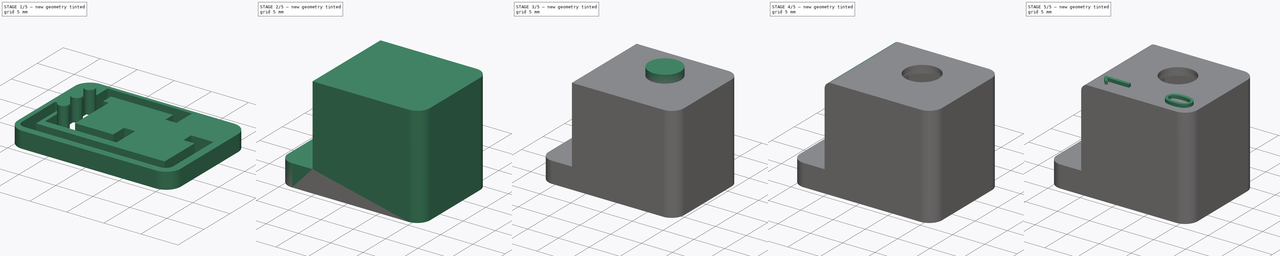
[diagram: build sequence overview — one tinted view per stage of 5, left to right]
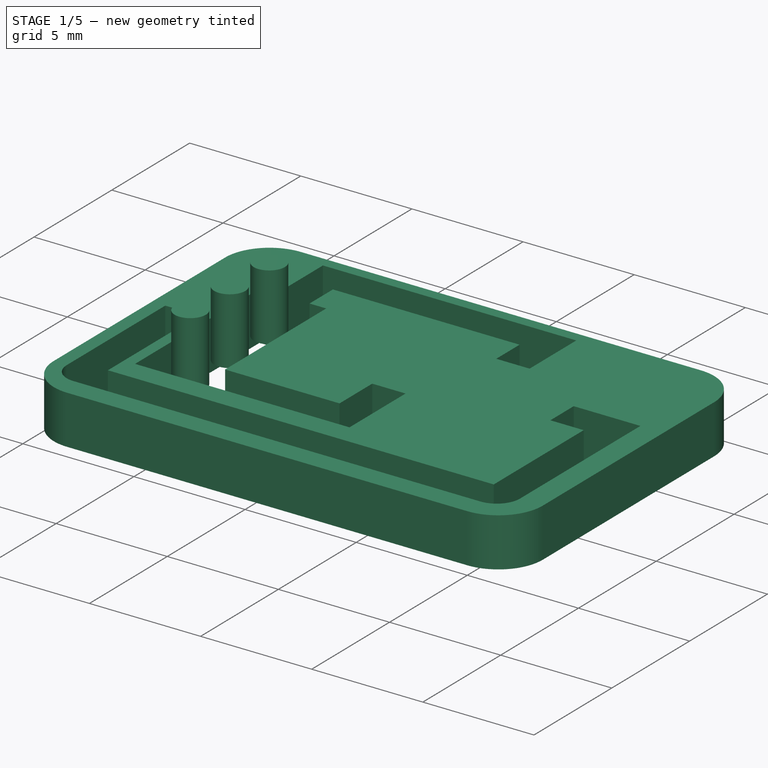
[diagram: stage 1 of 5 — iso view after this stage's code; geometry added in this stage tinted green]
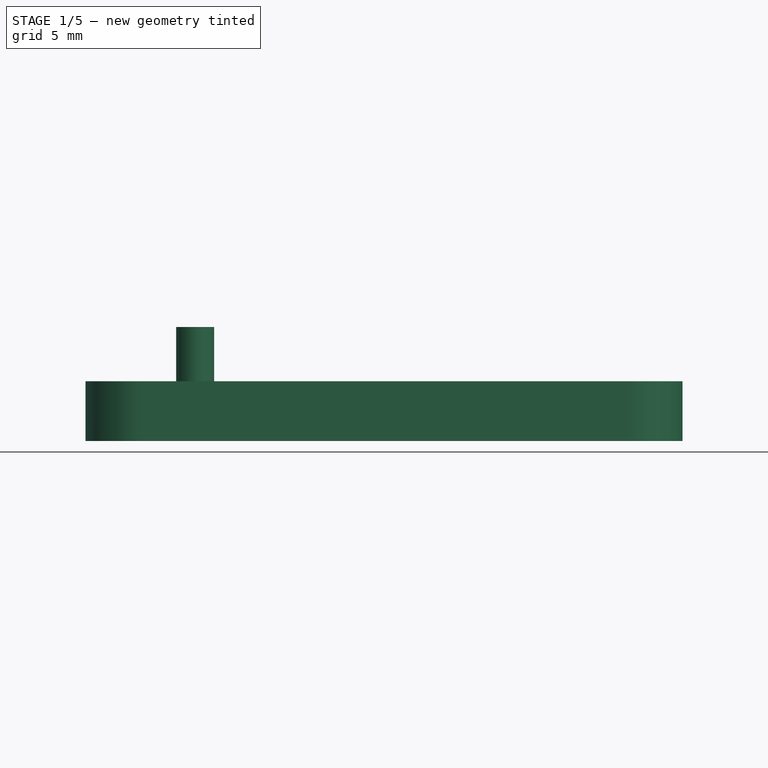
[diagram: stage 1 of 5 — front view after this stage's code; geometry added in this stage tinted green]
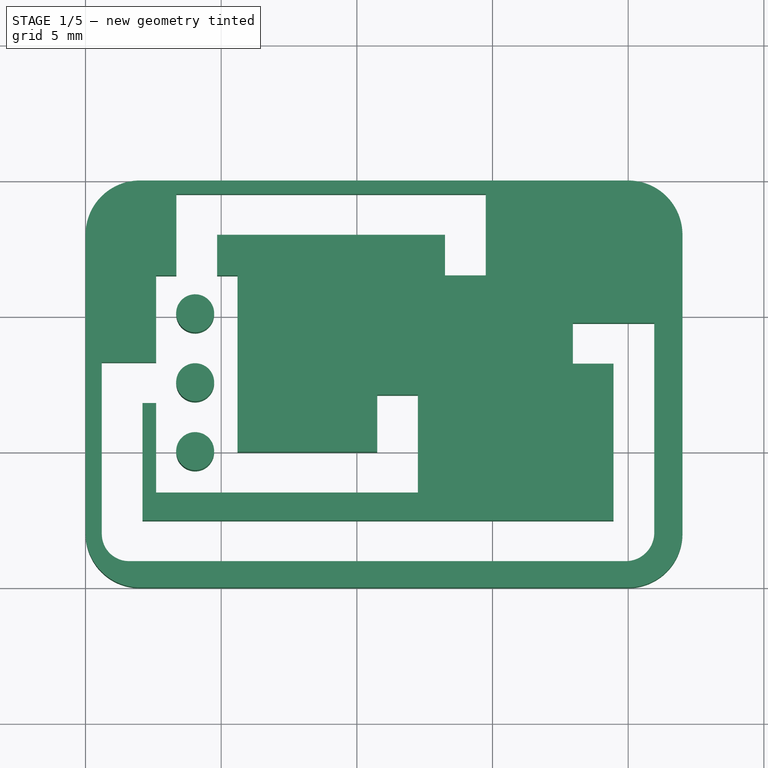
[diagram: stage 1 of 5 — top view after this stage's code; geometry added in this stage tinted green]
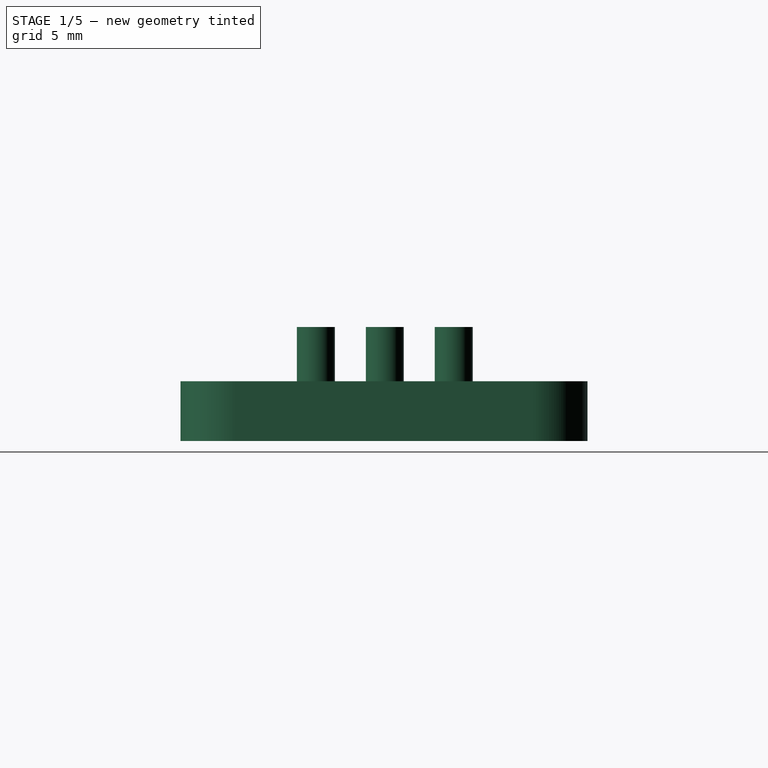
[diagram: stage 1 of 5 — right view after this stage's code; geometry added in this stage tinted green]
FCSTD DOCUMENT  (FreeCAD 0.17R13541 (Git))
Label: pcb_lever_switch
License: CreativeCommons Attribution
LicenseURL: http://creativecommons.org/licenses/by/4.0/
objects: Part::Feature×8, Sketcher::SketchObject×4, App::DocumentObjectGroup×3, Part::Cylinder×3, Part::MultiFuse×3, Part::Part2DObjectPython×3, Part::Extrusion×3, PartDesign::Pad×2, PartDesign::Pocket×2, PartDesign::Body×2, Part::Cut×2, Part::Box×1, Part::FeaturePython×1, Part::Fillet×1
note: 39 computed .brp shape members not serialized (recipe doc carries the construction recipe); baked Part::Feature solids carry a one-line shape summary decoded from their .brp

FEATURE [Sketcher::SketchObject] Sketch003  label="PCB-base-bottom"
  MapMode = 5
  Support = -> [XY_Plane]
  sketch-geometry (12):
    g0: LineSegment [constr] StartX=0 StartY=0 StartZ=0 EndX=22 EndY=0 EndZ=0
    g1: LineSegment [constr] StartX=22 StartY=0 StartZ=0 EndX=22 EndY=15 EndZ=0
    g2: LineSegment [constr] StartX=22 StartY=15 StartZ=0 EndX=0 EndY=15 EndZ=0
    g3: LineSegment [constr] StartX=0 StartY=15 StartZ=0 EndX=0 EndY=0 EndZ=0
    g4: LineSegment StartX=2 StartY=15 StartZ=0 EndX=20 EndY=15 EndZ=0
    g5: LineSegment StartX=22 StartY=13 StartZ=0 EndX=22 EndY=2 EndZ=0
    g6: LineSegment StartX=20 StartY=0 StartZ=0 EndX=2 EndY=0 EndZ=0
    g7: LineSegment StartX=0 StartY=2 StartZ=0 EndX=0 EndY=13 EndZ=0
    g8: ArcOfCircle CenterX=2 CenterY=13 CenterZ=0 NormalX=0 NormalY=0 NormalZ=1 AngleXU=0 Radius=2 StartAngle=1.5708 EndAngle=3.14159
    g9: ArcOfCircle CenterX=2 CenterY=2 CenterZ=0 NormalX=0 NormalY=0 NormalZ=1 AngleXU=0 Radius=2 StartAngle=3.14159 EndAngle=4.71239
    g10: ArcOfCircle CenterX=20 CenterY=2 CenterZ=0 NormalX=0 NormalY=0 NormalZ=1 AngleXU=0 Radius=2 StartAngle=4.71239 EndAngle=6.28319
    g11: ArcOfCircle CenterX=20 CenterY=13 CenterZ=0 NormalX=0 NormalY=0 NormalZ=1 AngleXU=0 Radius=2 StartAngle=0 EndAngle=1.5708
  constraints (31):
    c: Coincident(g0,g1)
    c: Coincident(g1,g2)
    c: Coincident(g2,g3)
    c: Coincident(g3,g0)
    c: Horizontal(g0)
    c: Horizontal(g2)
    c: Vertical(g1)
    c: Vertical(g3)
    c: Coincident(g0,g-1)
    c: DistanceX(g0,g0) = 22
    c: DistanceY(g1,g1) = 15
    c: Horizontal(g4)
    c: Horizontal(g6)
    c: Vertical(g5)
    c: Vertical(g7)
    c: Tangent(g4,g8) = 1.5708
    c: Tangent(g7,g8) = 1.5708
    c: Tangent(g6,g9) = 1.5708
    c: Tangent(g7,g9) = 1.5708
    c: Tangent(g5,g10) = 1.5708
    c: Tangent(g6,g10) = 1.5708
    c: Tangent(g4,g11) = 1.5708
    c: Tangent(g5,g11) = 1.5708
    c: Equal(g8,g11)
    c: Equal(g11,g10)
    c: Equal(g10,g9)
    c: Radius(g8) = 2
    c: PointOnObject(g7,g3)
    c: PointOnObject(g4,g2)
    c: PointOnObject(g6,g0)
    c: PointOnObject(g5,g1)
FEATURE [PartDesign::Pad] Pad  label="Pad  PCB-base-bottom"
  Length = 2.2
  Length2 = 100
  Profile = -> Sketch003
  Reversed = true
  Type = 0
FEATURE [Sketcher::SketchObject] Sketch005  label="pasacables inferior"
  ExternalGeometry = -> [Pad]
  MapMode = 5
  Placement = pos=(0,0,-2.2) rot=(1,0,0;3.14159rad)
  Support = -> [Pad]
  sketch-geometry (37):
    g0: LineSegment StartX=5.6 StartY=-3.5 StartZ=0 EndX=2.6 EndY=-3.5 EndZ=0
    g1: LineSegment StartX=2.6 StartY=-3.5 StartZ=0 EndX=2.6 EndY=-6.8 EndZ=0
    g2: LineSegment StartX=5.6 StartY=-11.5 StartZ=0 EndX=5.6 EndY=-5 EndZ=0
    g3: LineSegment [constr] StartX=5.6 StartY=-3.5 StartZ=0 EndX=5.6 EndY=-11.5 EndZ=0
    g4: LineSegment StartX=13.25 StartY=-13 StartZ=0 EndX=13.25 EndY=-11.5 EndZ=0
    g5: LineSegment StartX=13.25 StartY=-11.5 StartZ=0 EndX=14.75 EndY=-11.5 EndZ=0
    g6: LineSegment StartX=14.75 StartY=-11.5 StartZ=0 EndX=14.75 EndY=-14.5 EndZ=0
    g7: LineSegment StartX=14.75 StartY=-14.5 StartZ=0 EndX=3.35 EndY=-14.5 EndZ=0
    g8: LineSegment [constr] StartX=13.25 StartY=-13 StartZ=0 EndX=13.25 EndY=-14.5 EndZ=0
    g9: LineSegment StartX=2.6 StartY=-11.5 StartZ=0 EndX=3.35 EndY=-11.5 EndZ=0
    g10: LineSegment StartX=3.35 StartY=-11.5 StartZ=0 EndX=3.35 EndY=-14.5 EndZ=0
    g11: LineSegment StartX=5.6 StartY=-11.5 StartZ=0 EndX=4.85 EndY=-11.5 EndZ=0
    g12: LineSegment StartX=4.85 StartY=-11.5 StartZ=0 EndX=4.85 EndY=-13 EndZ=0
    g13: LineSegment StartX=4.85 StartY=-13 StartZ=0 EndX=13.25 EndY=-13 EndZ=0
    g14: LineSegment [constr] StartX=2.6 StartY=-11.5 StartZ=0 EndX=5.6 EndY=-11.5 EndZ=0
    g15: LineSegment StartX=5.6 StartY=-5 StartZ=0 EndX=10.75 EndY=-5 EndZ=0
    g16: LineSegment StartX=10.75 StartY=-5 StartZ=0 EndX=10.75 EndY=-7.1 EndZ=0
    g17: LineSegment StartX=10.75 StartY=-7.1 StartZ=0 EndX=12.25 EndY=-7.1 EndZ=0
    g18: LineSegment StartX=12.25 StartY=-7.1 StartZ=0 EndX=12.25 EndY=-3.5 EndZ=0
    g19: LineSegment StartX=12.25 StartY=-3.5 StartZ=0 EndX=5.6 EndY=-3.5 EndZ=0
    g20: LineSegment StartX=17.96 StartY=-8.25 StartZ=0 EndX=17.96 EndY=-9.75 EndZ=0
    g21: LineSegment StartX=17.96 StartY=-9.75 StartZ=0 EndX=20.96 EndY=-9.75 EndZ=0
    g22: LineSegment StartX=20.96 StartY=-9.75 StartZ=0 EndX=20.96 EndY=-2.02 EndZ=0
    g23: LineSegment StartX=19.91 StartY=-0.97 StartZ=0 EndX=1.6 EndY=-0.97 EndZ=0
    g24: LineSegment StartX=0.6 StartY=-1.97 StartZ=0 EndX=0.6 EndY=-8.3 EndZ=0
    g25: LineSegment StartX=0.6 StartY=-8.3 StartZ=0 EndX=2.6 EndY=-8.3 EndZ=0
    g26: LineSegment StartX=2.6 StartY=-6.8 StartZ=0 EndX=2.1 EndY=-6.8 EndZ=0
    g27: LineSegment StartX=2.1 StartY=-6.8 StartZ=0 EndX=2.1 EndY=-2.47 EndZ=0
    g28: LineSegment StartX=2.1 StartY=-2.47 StartZ=0 EndX=19.46 EndY=-2.47 EndZ=0
    g29: LineSegment StartX=19.46 StartY=-2.47 StartZ=0 EndX=19.46 EndY=-8.25 EndZ=0
    g30: LineSegment StartX=19.46 StartY=-8.25 StartZ=0 EndX=17.96 EndY=-8.25 EndZ=0
    g31: LineSegment StartX=2.6 StartY=-8.3 StartZ=0 EndX=2.6 EndY=-11.5 EndZ=0
    g32: LineSegment [constr] StartX=2.1 StartY=-6.8 StartZ=0 EndX=0.6 EndY=-6.8 EndZ=0
    g33: LineSegment [constr] StartX=19.46 StartY=-2.47 StartZ=0 EndX=19.46 EndY=-0.97 EndZ=0
    g34: LineSegment [constr] StartX=19.46 StartY=-8.25 StartZ=0 EndX=20.96 EndY=-8.25 EndZ=0
    g35: ArcOfCircle CenterX=1.6 CenterY=-1.97 CenterZ=0 NormalX=0 NormalY=0 NormalZ=1 AngleXU=0 Radius=1 StartAngle=1.5708 EndAngle=3.14159
    g36: ArcOfCircle CenterX=19.91 CenterY=-2.02 CenterZ=0 NormalX=0 NormalY=0 NormalZ=1 AngleXU=0 Radius=1.05 StartAngle=0 EndAngle=1.5708
  constraints (109):
    c: Horizontal(g0)
    c: Coincident(g0,g1)
    c: Vertical(g1)
    c: Vertical(g2)
    c: Distance(g31,g-3) = 3.5
    c: DistanceY(g-1,g0) = -3.5
    c: DistanceX(g-2,g0) = 2.6
    c: Vertical(g3)
    c: Coincident(g3,g0)
    c: PointOnObject(g2,g3)
    c: Vertical(g4)
    c: Coincident(g4,g5)
    c: Horizontal(g5)
    c: Coincident(g5,g6)
    c: Vertical(g6)
    c: Coincident(g6,g7)
    c: Horizontal(g7)
    c: DistanceX(g5,g5) = 1.5
    c: Vertical(g8)
    c: PointOnObject(g8,g7)
    c: DistanceY(g8,g8) = 1.5
    c: DistanceX(g7,g7) = 11.4
    c: DistanceY(g6,g6) = 3
    c: Horizontal(g9)
    c: Coincident(g9,g10)
    c: Vertical(g10)
    c: Coincident(g31,g9)
    c: Coincident(g7,g10)
    c: DistanceX(g9,g9) = 0.75
    c: Horizontal(g11)
    c: Coincident(g11,g12)
    c: Vertical(g12)
    c: Coincident(g12,g13)
    c: Horizontal(g13)
    c: Coincident(g2,g3)
    c: Coincident(g2,g11)
    c: DistanceX(g11,g11) = 0.75
    c: Coincident(g4,g8)
    c: Coincident(g4,g13)
    c: DistanceY(g10,g10) = 3
    c: Horizontal(g14)
    c: Coincident(g31,g14)
    c: Coincident(g2,g14)
    c: DistanceX(g0,g0) = 3
    c: Distance(g2,g0) = 1.5
    c: Horizontal(g15)
    c: Coincident(g15,g16)
    c: Vertical(g16)
    c: Coincident(g16,g17)
    c: Horizontal(g17)
    c: Coincident(g17,g18)
    c: Vertical(g18)
    c: Coincident(g18,g19)
    c: Horizontal(g19)
    c: Coincident(g0,g19)
    c: Coincident(g2,g15)
    c: DistanceX(g17,g17) = 1.5
    c: DistanceX(g19,g19) = 6.65
    c: DistanceY(g18,g18) = 3.6
    c: Vertical(g20)
    c: Coincident(g20,g21)
    c: Horizontal(g21)
    c: Coincident(g21,g22)
    c: Vertical(g22)
    c: Horizontal(g23)
    c: Vertical(g24)
    c: Coincident(g24,g25)
    c: Horizontal(g25)
    c: Horizontal(g26)
    c: Coincident(g26,g27)
    c: Vertical(g27)
    c: Coincident(g27,g28)
    c: Horizontal(g28)
    c: Coincident(g28,g29)
    c: Vertical(g29)
    c: Coincident(g29,g30)
    c: Horizontal(g30)
    c: Coincident(g20,g30)
    c: PointOnObject(g1,g26)
    c: PointOnObject(g31,g25)
    c: Tangent(g1,g31)
    c: Coincident(g25,g31)
    c: Coincident(g1,g26)
    c: Distance(g25,g1) = 1.5
    c: DistanceY(g1,g1) = 3.3
    c: Horizontal(g32)
    c: Coincident(g26,g32)
    c: PointOnObject(g32,g24)
    c: DistanceX(g32,g32) = 1.5
    c: DistanceX(g26,g26) = 0.5
    c: Vertical(g33)
    c: Coincident(g28,g33)
    c: PointOnObject(g33,g23)
    c: DistanceY(g33,g33) = 1.5
    c: DistanceY(g20,g20) = 1.5
    c: Horizontal(g34)
    c: Coincident(g29,g34)
    c: PointOnObject(g34,g22)
    c: DistanceX(g34,g34) = 1.5
    c: DistanceX(g30,g30) = 1.5
    c: Tangent(g24,g35) = -1.5708
    c: Tangent(g23,g35) = -1.5708
    c: Tangent(g23,g36) = -1.5708
    c: Tangent(g22,g36) = -1.5708
    c: Radius(g35) = 1
    c: DistanceX(g23,g23) = 18.31
    c: DistanceY(g24,g24) = 6.33
    c: Distance(g23,g33) = 0.45
    c: DistanceY(g22,g22) = 7.73
FEATURE [PartDesign::Pocket] Pocket001001002  label="Hueco inferior pasacables"
  BaseFeature = -> Pad
  Length = 2.5
  Length2 = 100
  Profile = -> Sketch005
  Type = 0
FEATURE [Part::Cylinder] Cylinder002  label="Master hueco conector"
  Angle = 360
  AttacherType = Attacher::AttachEngine3D
  Height = 3
  Placement = pos=(4.04,10.07,-1) rot=(0,0,1;0rad)
  Radius = 0.7
FEATURE [Part::FeaturePython] Array  label="Array 3 huecos paso conectores"  # Draft array (typed FeaturePython)
  Angle = 360
  ArrayType = 0
  Axis = (0,0,1)
  Base = -> Cylinder002
  Center = (0,0,0)
  Fuse = false
  IntervalAxis = (0,0,0)
  IntervalX = (1,0,0)
  IntervalY = (0,-2.54,0)
  IntervalZ = (0,0,0)
  NumberPolar = 1
  NumberX = 1
  NumberY = 3
  NumberZ = 1
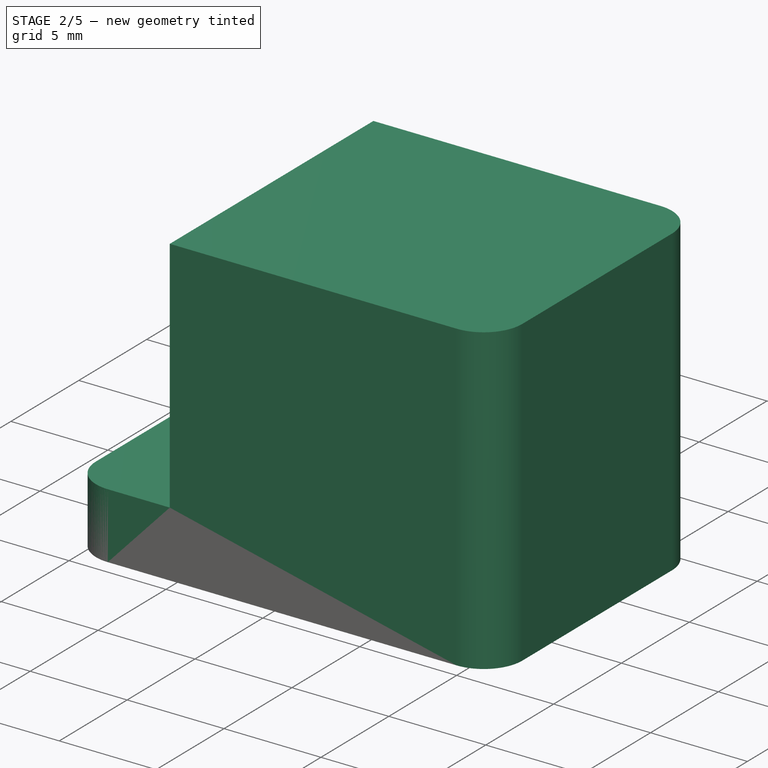
[diagram: stage 2 of 5 — iso view after this stage's code; geometry added in this stage tinted green]
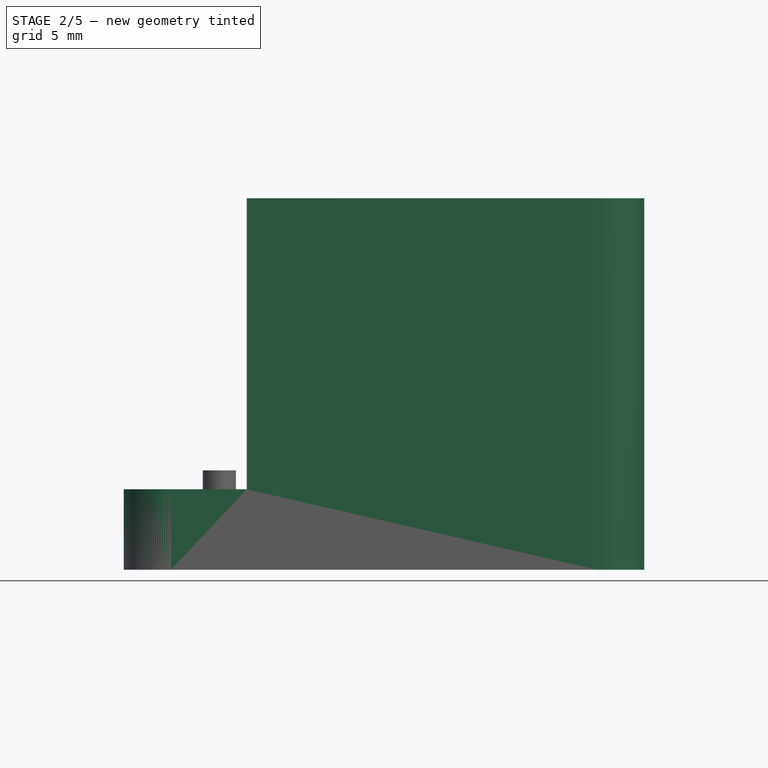
[diagram: stage 2 of 5 — front view after this stage's code; geometry added in this stage tinted green]
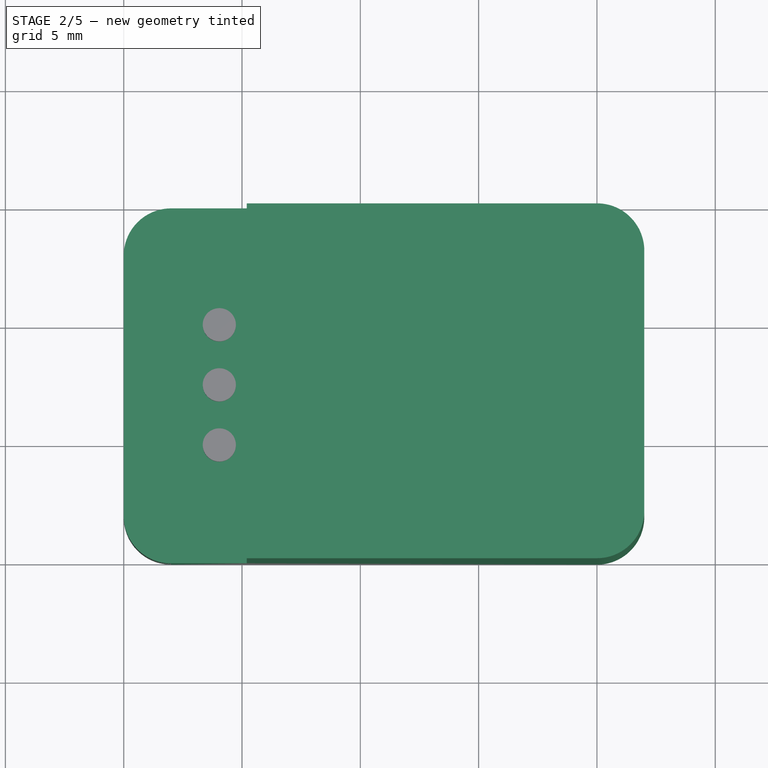
[diagram: stage 2 of 5 — top view after this stage's code; geometry added in this stage tinted green]
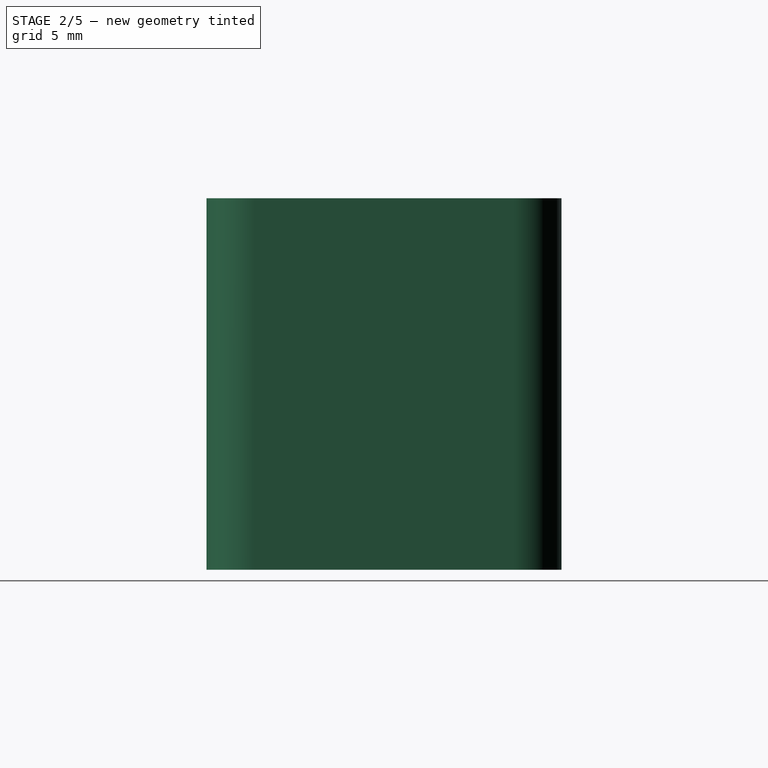
[diagram: stage 2 of 5 — right view after this stage's code; geometry added in this stage tinted green]
FEATURE [Part::Feature] Clone002001  label="Insulators001"
  Placement = pos=(4.04,5,1.2) rot=(0,0,1;0rad)
  shape: bbox 2.54 x 7.62 x 2.5 mm, 42 faces, 3 solids (baked)
FEATURE [Part::Feature] Clone001001  label="pins001"
  Placement = pos=(4.04,5,1.2) rot=(0,0,1;0rad)
  shape: bbox 10.36 x 5.72 x 4.57 mm, 54 faces, 3 solids (baked)
FEATURE [App::DocumentObjectGroup] Group001  label="connector"
  Group = -> [Clone001001,Clone002001]
FEATURE [Part::Feature] Pocket001001  label="Tuerca inferior"
  Placement = pos=(14,9,12.5) rot=(0,0,1;0rad)
  shape: bbox 6.928 x 8 x 1.43 mm, 9 faces (baked)
FEATURE [Part::Feature] Pad003001  label="Arandela plana"
  Placement = pos=(14,9,13.93) rot=(0,0,1;0rad)
  shape: bbox 11 x 11 x 0.6 mm, 4 faces (baked)
FEATURE [Part::Feature] Pocket001001001  label="Tuerca superior"
  Placement = pos=(14,9,15.53) rot=(0,0,1;0rad)
  shape: bbox 6.928 x 8 x 1.43 mm, 9 faces (baked)
FEATURE [Part::Feature] Fusion002  label="Interruptor"
  Placement = pos=(14,9,4) rot=(0,0,1;0rad)
  shape: bbox 8.35 x 6 x 28.33 mm, 33 faces (baked)
FEATURE [Part::Feature] Cut002001  label="Arandela de freno"
  Placement = pos=(14,9,14.53) rot=(0,0,1;0rad)
  shape: bbox 10 x 10 x 1 mm, 35 faces (baked)
FEATURE [App::DocumentObjectGroup] Grupo  label="Piezas del Interruptor"
  Group = -> [Cut002001,Pocket001001001,Pocket001001,Pad003001,Fusion002]
FEATURE [Sketcher::SketchObject] Sketch004  label="PCB-base-up"
  MapMode = 5
  Support = -> [XY_Plane001]
  sketch-geometry (12):
    g0: LineSegment [constr] StartX=0 StartY=0 StartZ=0 EndX=22 EndY=0 EndZ=0
    g1: LineSegment [constr] StartX=22 StartY=0 StartZ=0 EndX=22 EndY=15 EndZ=0
    g2: LineSegment [constr] StartX=22 StartY=15 StartZ=0 EndX=0 EndY=15 EndZ=0
    g3: LineSegment [constr] StartX=0 StartY=15 StartZ=0 EndX=0 EndY=0 EndZ=0
    g4: LineSegment StartX=2 StartY=15 StartZ=0 EndX=20 EndY=15 EndZ=0
    g5: LineSegment StartX=22 StartY=13 StartZ=0 EndX=22 EndY=2 EndZ=0
    g6: LineSegment StartX=20 StartY=0 StartZ=0 EndX=2 EndY=0 EndZ=0
    g7: LineSegment StartX=0 StartY=2 StartZ=0 EndX=0 EndY=13 EndZ=0
    g8: ArcOfCircle CenterX=2 CenterY=13 CenterZ=0 NormalX=0 NormalY=0 NormalZ=1 AngleXU=0 Radius=2 StartAngle=1.5708 EndAngle=3.14159
    g9: ArcOfCircle CenterX=2 CenterY=2 CenterZ=0 NormalX=0 NormalY=0 NormalZ=1 AngleXU=0 Radius=2 StartAngle=3.14159 EndAngle=4.71239
    g10: ArcOfCircle CenterX=20 CenterY=2 CenterZ=0 NormalX=0 NormalY=0 NormalZ=1 AngleXU=0 Radius=2 StartAngle=4.71239 EndAngle=6.28319
    g11: ArcOfCircle CenterX=20 CenterY=13 CenterZ=0 NormalX=0 NormalY=0 NormalZ=1 AngleXU=0 Radius=2 StartAngle=0 EndAngle=1.5708
  constraints (31):
    c: Coincident(g0,g1)
    c: Coincident(g1,g2)
    c: Coincident(g2,g3)
    c: Coincident(g3,g0)
    c: Horizontal(g0)
    c: Horizontal(g2)
    c: Vertical(g1)
    c: Vertical(g3)
    c: Coincident(g0,g-1)
    c: DistanceX(g0,g0) = 22
    c: DistanceY(g1,g1) = 15
    c: Horizontal(g4)
    c: Horizontal(g6)
    c: Vertical(g5)
    c: Vertical(g7)
    c: Tangent(g4,g8) = 1.5708
    c: Tangent(g7,g8) = 1.5708
    c: Tangent(g6,g9) = 1.5708
    c: Tangent(g7,g9) = 1.5708
    c: Tangent(g5,g10) = 1.5708
    c: Tangent(g6,g10) = 1.5708
    c: Tangent(g4,g11) = 1.5708
    c: Tangent(g5,g11) = 1.5708
    c: Equal(g8,g11)
    c: Equal(g11,g10)
    c: Equal(g10,g9)
    c: Radius(g8) = 2
    c: PointOnObject(g7,g3)
    c: PointOnObject(g4,g2)
    c: PointOnObject(g6,g0)
    c: PointOnObject(g5,g1)
FEATURE [PartDesign::Pad] Pad003002  label="Pad  PCB-base-up"
  Length = 13.5
  Length2 = 100
  Profile = -> Sketch004
  Type = 0
FEATURE [Sketcher::SketchObject] Sketch  label="Sketch hueco conector"
  MapMode = 5
  Placement = pos=(0,0,13.5) rot=(0,0,1;0rad)
  Support = -> [Pad003002]
  sketch-geometry (6):
    g0: LineSegment StartX=2 StartY=0 StartZ=0 EndX=5.2 EndY=0 EndZ=0
    g1: LineSegment StartX=5.2 StartY=0 StartZ=0 EndX=5.2 EndY=15 EndZ=0
    g2: LineSegment StartX=5.2 StartY=15 StartZ=0 EndX=2 EndY=15 EndZ=0
    g3: LineSegment StartX=0 StartY=13 StartZ=0 EndX=0 EndY=2 EndZ=0
    g4: ArcOfCircle CenterX=2 CenterY=13 CenterZ=0 NormalX=0 NormalY=0 NormalZ=1 AngleXU=0 Radius=2 StartAngle=1.5708 EndAngle=3.14159
    g5: ArcOfCircle CenterX=2 CenterY=2 CenterZ=0 NormalX=0 NormalY=0 NormalZ=1 AngleXU=0 Radius=2 StartAngle=3.14159 EndAngle=4.71239
  constraints (16):
    c: Coincident(g0,g1)
    c: Coincident(g1,g2)
    c: Horizontal(g0)
    c: Horizontal(g2)
    c: Vertical(g1)
    c: Vertical(g3)
    c: DistanceY(g1,g1) = 15
    c: Tangent(g3,g4) = -1.5708
    c: Tangent(g2,g4) = -1.5708
    c: Tangent(g0,g5) = -1.5708
    c: Tangent(g3,g5) = -1.5708
    c: Radius(g4) = 2
    c: Radius(g5) = 2
    c: PointOnObject(g3,g-2)
    c: Tangent(g0,g-1) = -1.5708
    c: DistanceX(g2,g2) = 3.2
FEATURE [PartDesign::Pocket] Pocket
  BaseFeature = -> Pad003002
  Length = 12.3
  Length2 = 100
  Profile = -> Sketch
  Type = 0
FEATURE [PartDesign::Body] Body  label="Body parte inferior"
  Group = -> [Sketch003,Pad,Sketch005,Pocket001001002]
  Origin = -> Origin
  Tip = -> Pocket001001002
FEATURE [Part::MultiFuse] Fusion003  label="Fusion cuerpo sup inf"
  Refine = true
  Shapes = -> [Body,Body001]
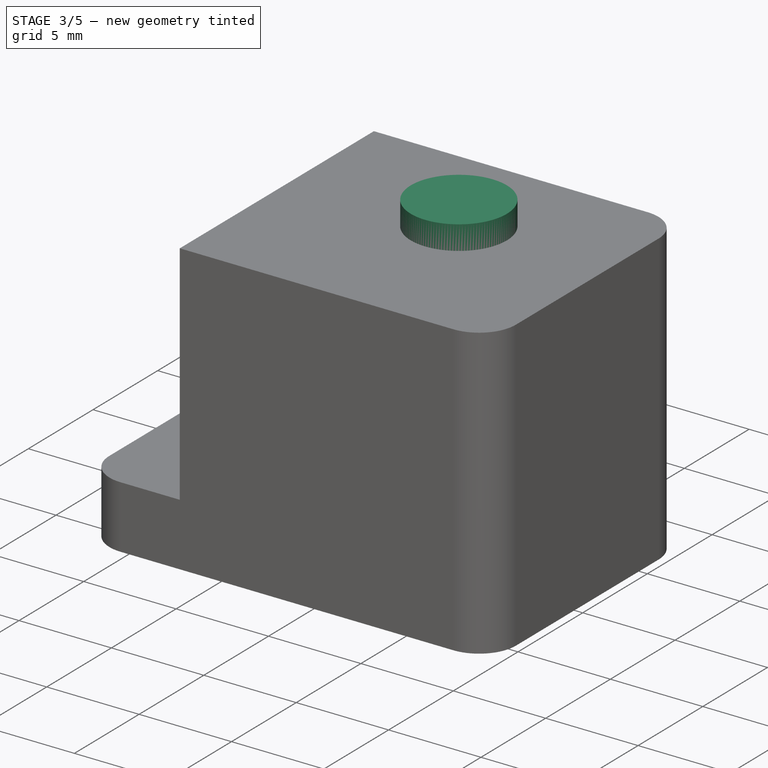
[diagram: stage 3 of 5 — iso view after this stage's code; geometry added in this stage tinted green]
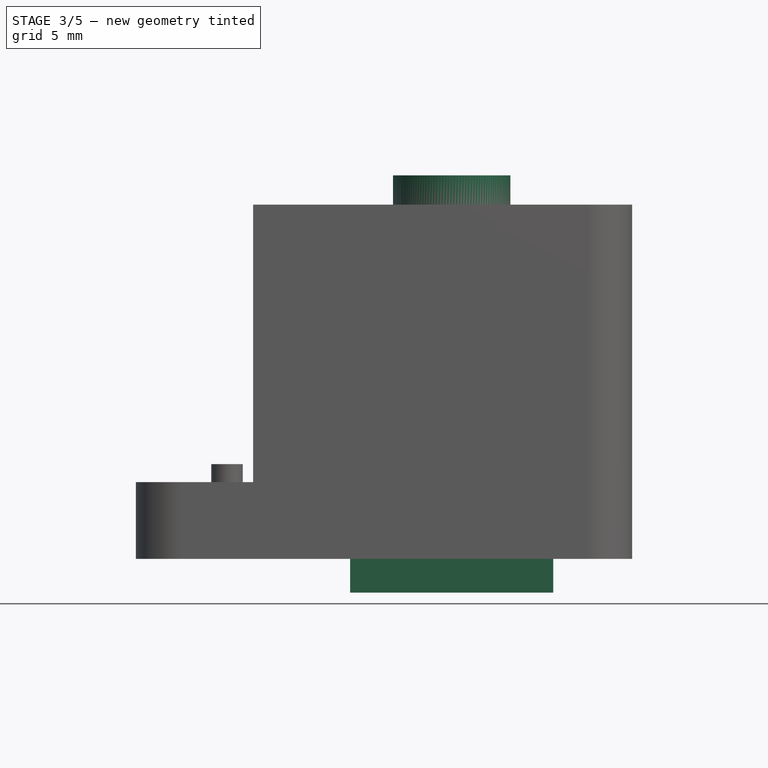
[diagram: stage 3 of 5 — front view after this stage's code; geometry added in this stage tinted green]
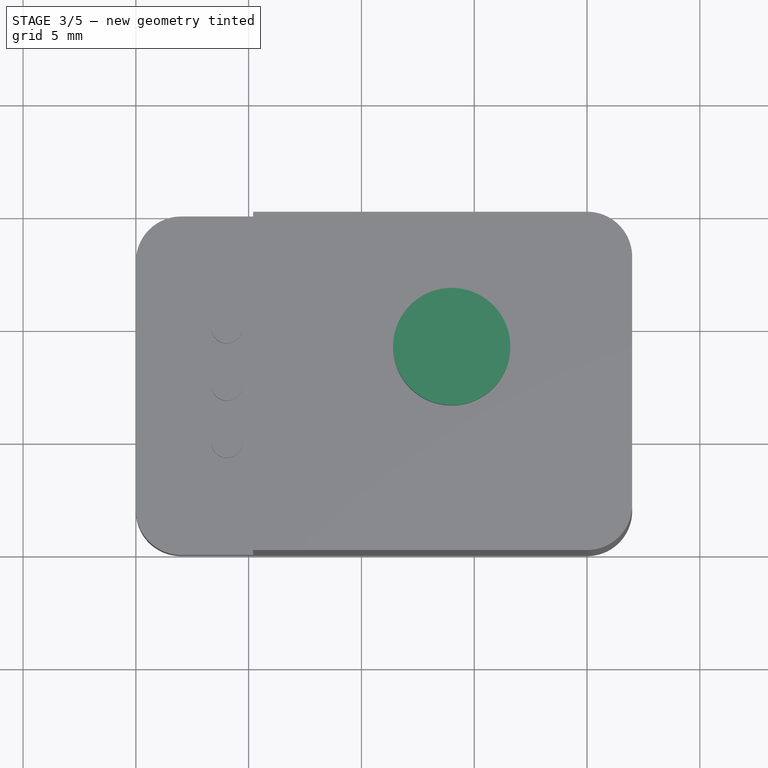
[diagram: stage 3 of 5 — top view after this stage's code; geometry added in this stage tinted green]
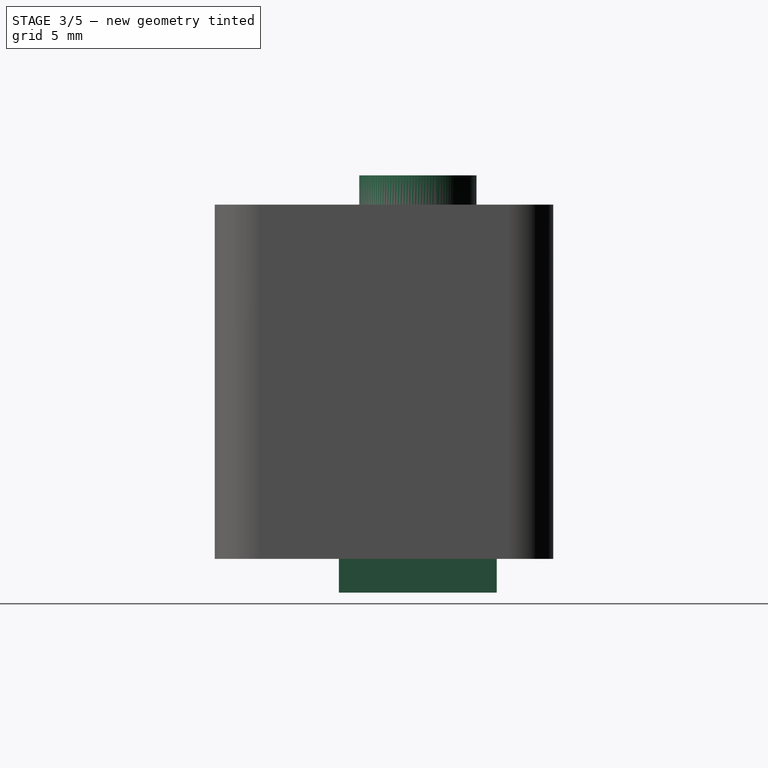
[diagram: stage 3 of 5 — right view after this stage's code; geometry added in this stage tinted green]
FEATURE [Part::Box] Box  label="vaciado cuerpo interruptor"
  AttacherType = Attacher::AttachEngine3D
  Height = 15.7
  Length = 9
  Placement = pos=(9.5,5.5,-3.7) rot=(0,0,1;0rad)
  Width = 7
FEATURE [Part::Cylinder] Cylinder  label="vaciado arandela 6 mm"
  Angle = 360
  AttacherType = Attacher::AttachEngine3D
  Height = 0.8
  Placement = pos=(14,9,12) rot=(0,0,1;0rad)
  Radius = 3.25
FEATURE [Part::Cylinder] Cylinder001  label="vaciado cilindro roscado"
  Angle = 360
  AttacherType = Attacher::AttachEngine3D
  Height = 2
  Placement = pos=(14,9,12.8) rot=(0,0,1;0rad)
  Radius = 2.6
FEATURE [Part::MultiFuse] Fusion  label="Fusion vaciado interruptor"
  Refine = true
  Shapes = -> [Box,Cylinder,Cylinder001]
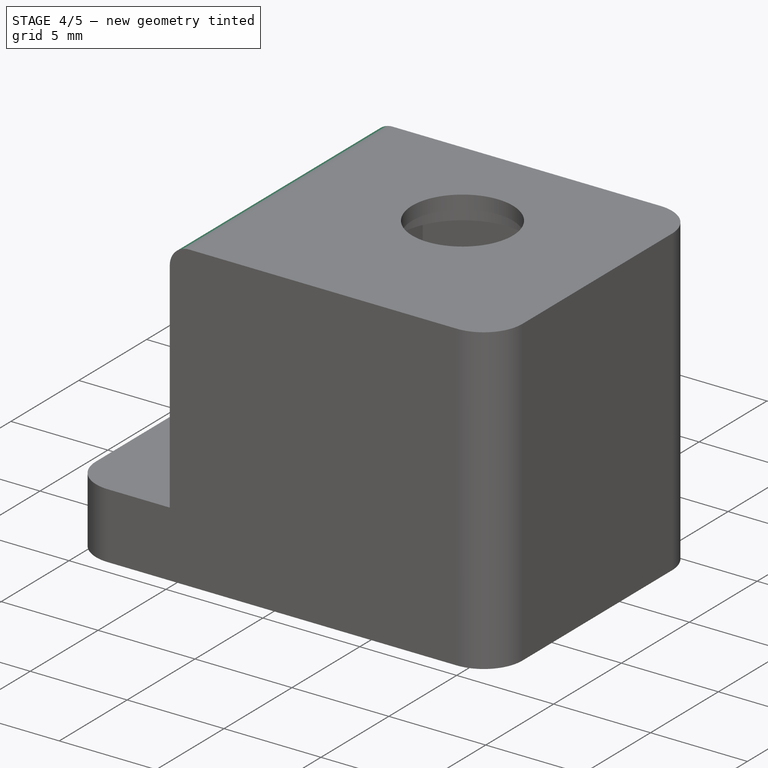
[diagram: stage 4 of 5 — iso view after this stage's code; geometry added in this stage tinted green]
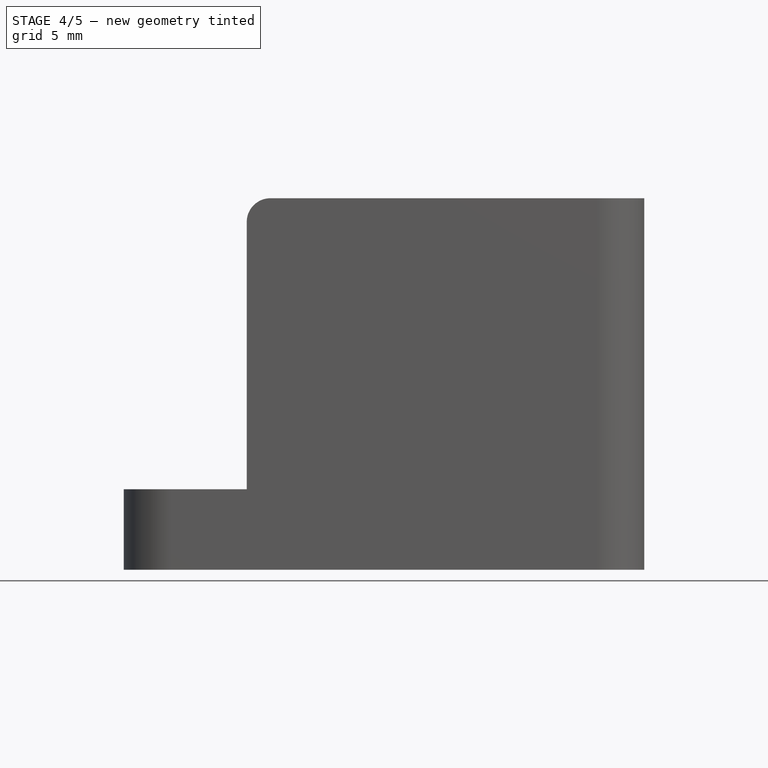
[diagram: stage 4 of 5 — front view after this stage's code; geometry added in this stage tinted green]
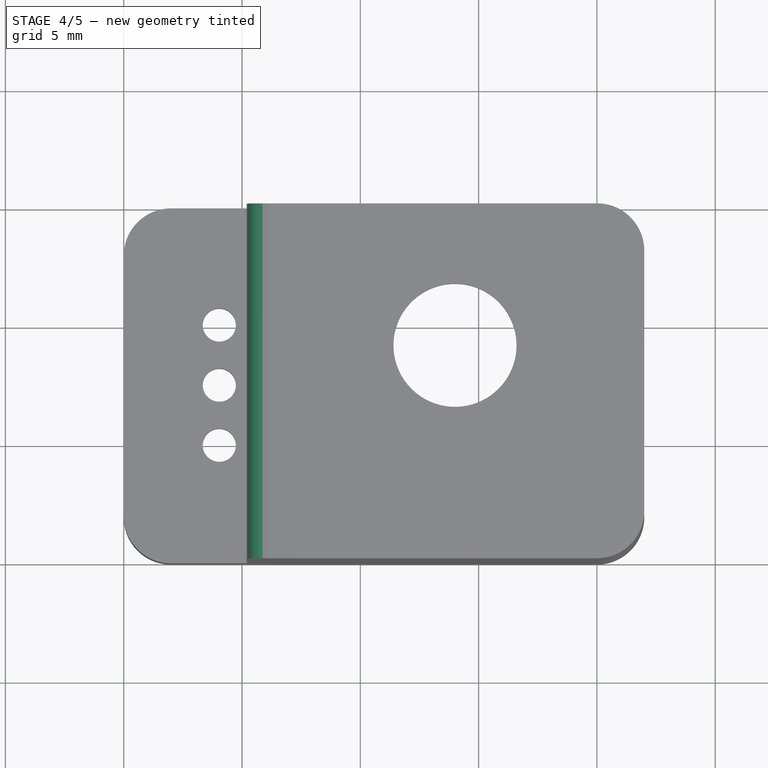
[diagram: stage 4 of 5 — top view after this stage's code; geometry added in this stage tinted green]
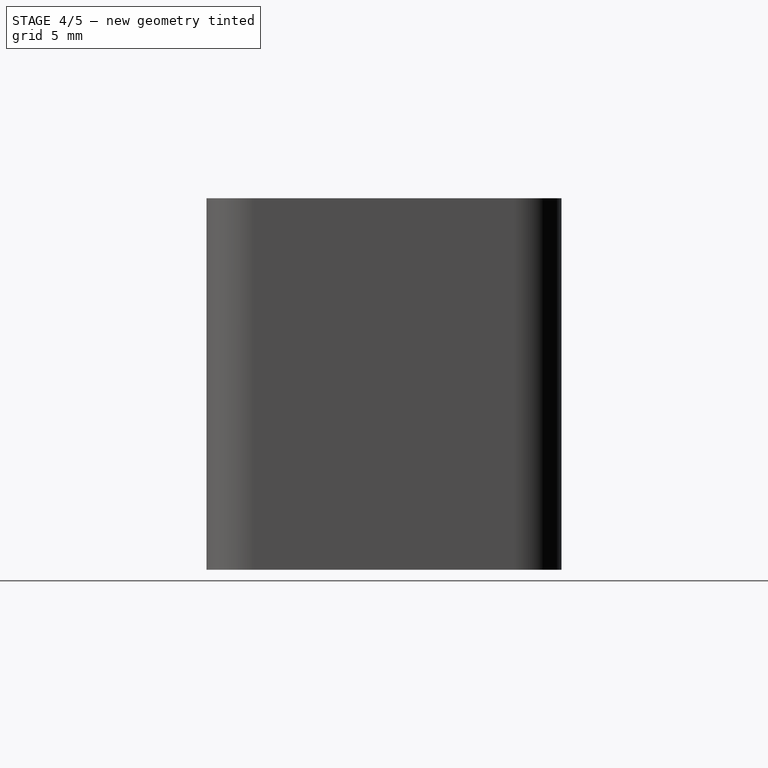
[diagram: stage 4 of 5 — right view after this stage's code; geometry added in this stage tinted green]
FEATURE [Part::Cut] Cut  label="Cuerpo principal sin huecos conectores"
  Base = -> Fusion003
  Refine = true
  Tool = -> Fusion
FEATURE [Part::Cut] Cut002002  label="Cuerpo principal sin radios"
  Base = -> Cut
  Refine = true
  Tool = -> Array
FEATURE [Part::Fillet] Fillet  label="Cuerpo principal sin letras"
  Base = -> Cut002002
  Edges = 1 edges r=1: [Edge3]
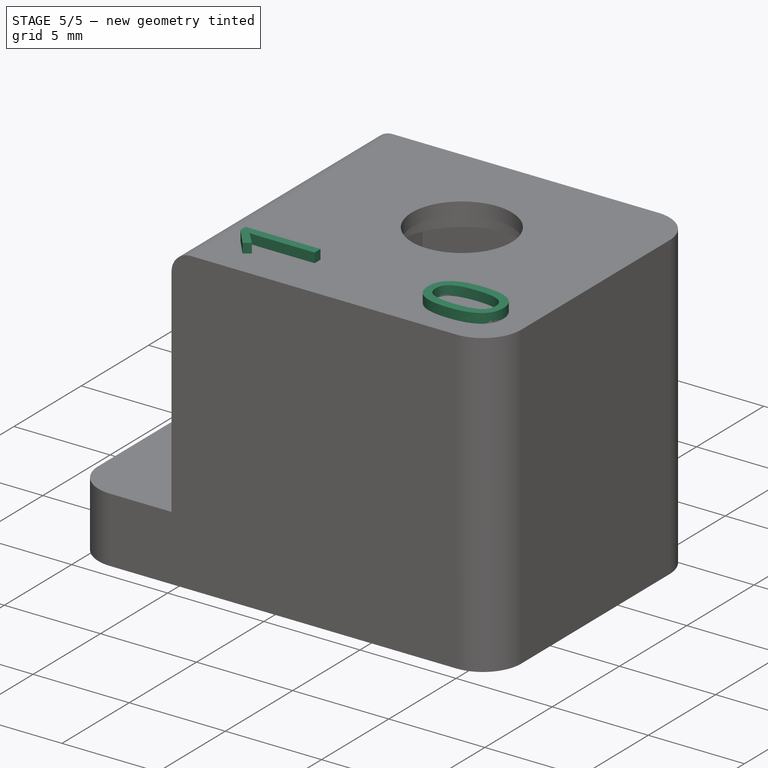
[diagram: stage 5 of 5 — iso view after this stage's code; geometry added in this stage tinted green]
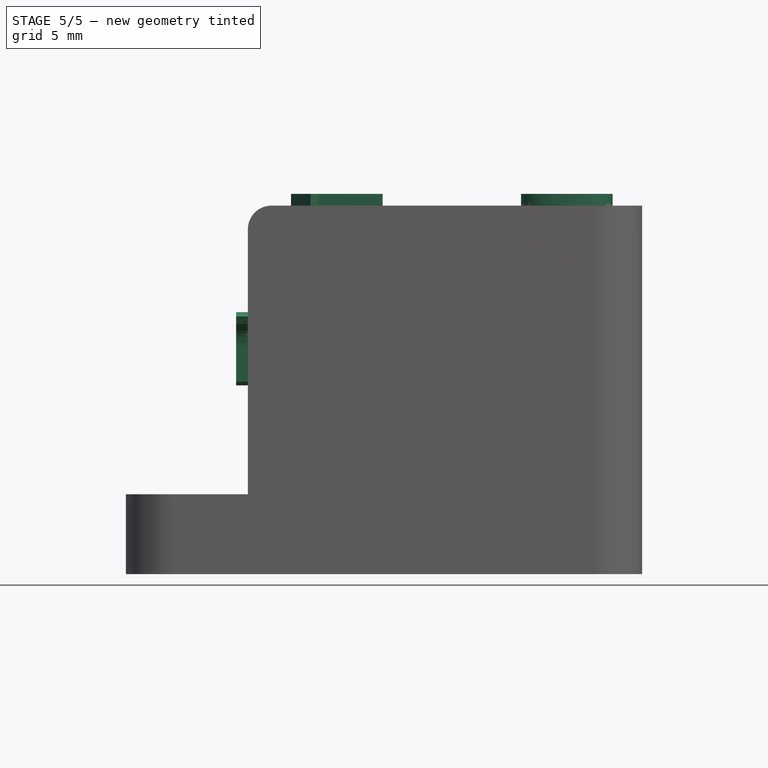
[diagram: stage 5 of 5 — front view after this stage's code; geometry added in this stage tinted green]
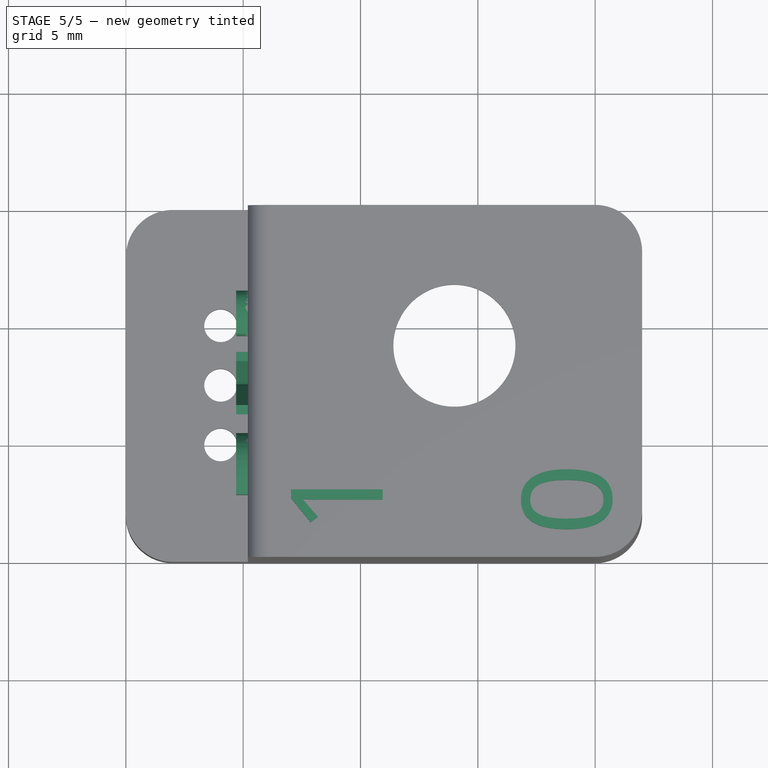
[diagram: stage 5 of 5 — top view after this stage's code; geometry added in this stage tinted green]
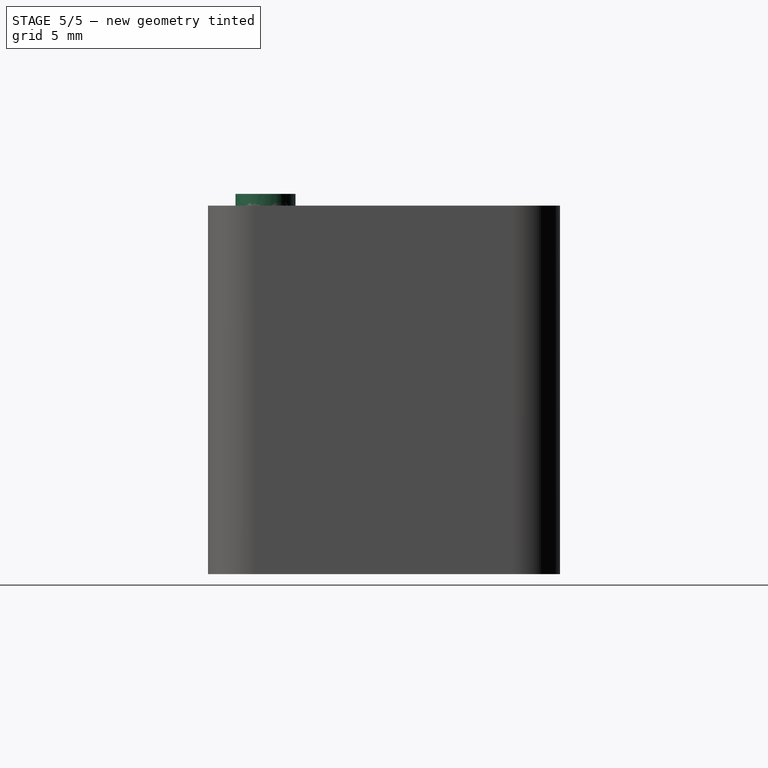
[diagram: stage 5 of 5 — right view after this stage's code; geometry added in this stage tinted green]
FEATURE [PartDesign::Body] Body001  label="Body parte superior"
  Group = -> [Sketch004,Pad003002,Sketch,Pocket]
  Origin = -> Origin001
  Tip = -> Pocket
FEATURE [Part::Part2DObjectPython] ShapeString  label="Texto-1"  # Draft 2D object (typed FeaturePython)
  FontFile = C:/Program Files/FreeCAD 0.16/Tipografias de Letra/OpenSans-Regular.ttf
  Placement = pos=(10.94,0.97,13.5) rot=(0,0,1;1.5708rad)
  Size = 5
  String = 1
  Support = -> [Pocket]
  Tracking = 0
FEATURE [Part::Extrusion] Extrude  label="Texto-1 3D"
  Base = -> ShapeString
  Dir = (0,0,1)
  DirMode = 2
  FaceMakerClass = Part::FaceMakerBullseye
  LengthFwd = 0.5
  LengthRev = 0
  Solid = false
  Symmetric = false
FEATURE [Part::Part2DObjectPython] ShapeString001  label="Texto-0"  # Draft 2D object (typed FeaturePython)
  FontFile = C:/Program Files/FreeCAD 0.16/Tipografias de Letra/OpenSans-Regular.ttf
  Placement = pos=(20.74,0.9,13.5) rot=(0,0,1;1.5708rad)
  Size = 5
  String = 0
  Support = -> [Pocket]
  Tracking = 0
FEATURE [Part::Extrusion] Extrude001  label="Texto-0 3D"
  Base = -> ShapeString001
  Dir = (0,0,1)
  DirMode = 2
  FaceMakerClass = Part::FaceMakerBullseye
  LengthFwd = 0.5
  LengthRev = 0
  Solid = false
  Symmetric = false
FEATURE [Part::Part2DObjectPython] ShapeString002  label="Texto SVG"  # Draft 2D object (typed FeaturePython)
  FontFile = C:/Program Files/FreeCAD 0.16/Tipografias de Letra/OpenSans-Regular.ttf
  Placement = pos=(5.2,11.7,5.84) rot=(0.57735,-0.57735,-0.57735;2.0944rad)
  Size = 4
  String = SVG
  Support = -> [Pocket]
  Tracking = 0.5
FEATURE [Part::Extrusion] Extrude002  label="Texto SVG 3D"
  Base = -> ShapeString002
  Dir = (-1,0,0)
  DirMode = 2
  FaceMakerClass = Part::FaceMakerBullseye
  LengthFwd = 0.5
  LengthRev = 0
  Solid = false
  Symmetric = false
FEATURE [Part::MultiFuse] Fusion004  label="Master Soporte Interruptor con palanca"
  Refine = true
  Shapes = -> [Fillet,Extrude002,Extrude001,Extrude]
FEATURE [App::DocumentObjectGroup] Grupo001  label="Contruccion del soporte con palanca"
  Group = -> [Fusion004]
FEATURE [Part::Feature] Fusion004001  label="Soporte Interruptor con palanca"
  shape: bbox 22 x 15 x 16.2 mm, 139 faces (baked)
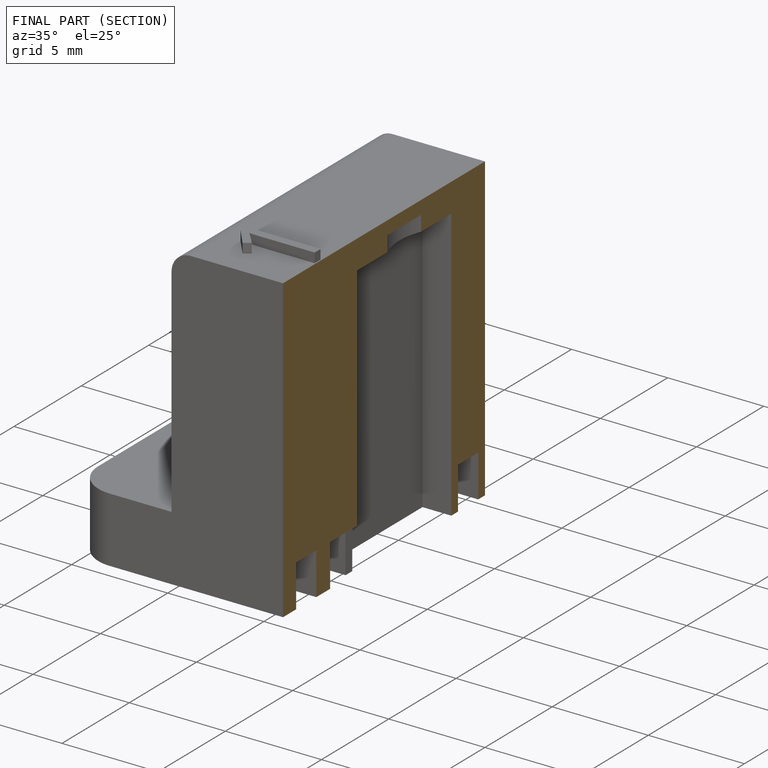
[diagram: finished part — half-section view (interior)]
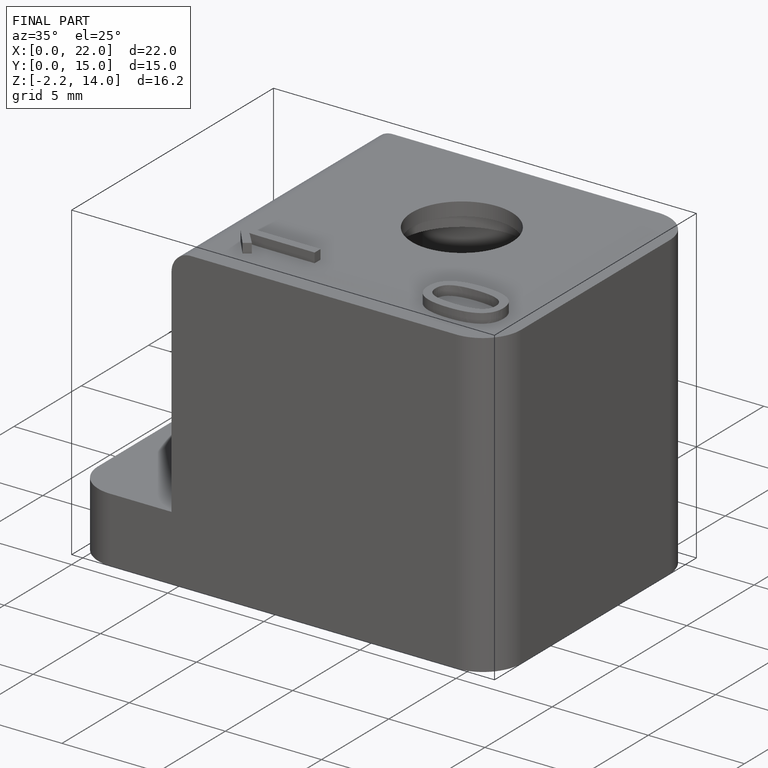
[diagram: finished part — iso view with bounding-box wireframe]
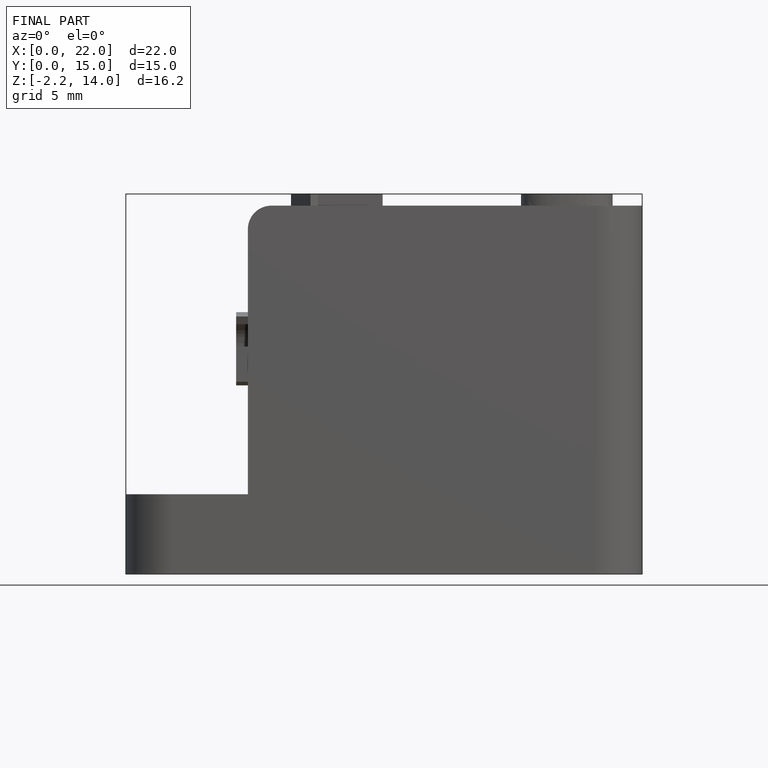
[diagram: finished part — front view with bounding-box wireframe]
